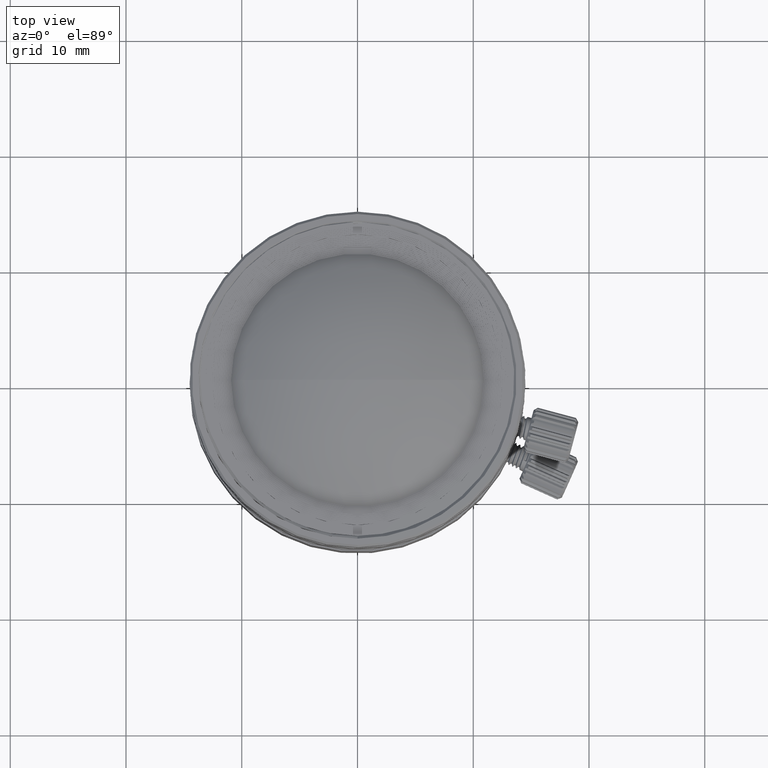
[diagram: clean part render]
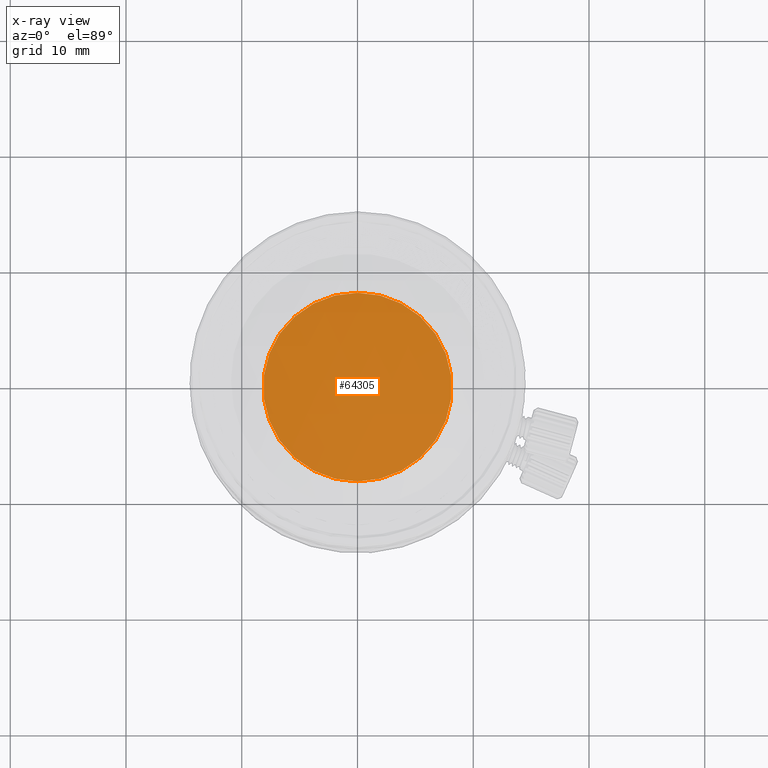
[diagram: x-ray — body ghosted, one internal face saturated and labeled with its STEP entity id]
A machine part, top view, then the same camera in x-ray: the body is ghosted and one INTERNAL B-rep face — a face not visible from any outside direction — is saturated and labeled: STEP entity #64305.
In plain terms, the highlighted planar face has unit normal (0, 0, -1).
Its self-contained STEP definition (entity closure, byte-faithful):
#332 = DIRECTION ( 'NONE',  ( -1.171455364577400068E-15, 0.000000000000000000, 1.000000000000000000 ) ) ;
#2481 = CARTESIAN_POINT ( 'NONE',  ( -9.980871413051040398E-16, 8.149999999999998579, 5.002248615326719903E-10 ) ) ;
#6861 = ORIENTED_EDGE ( 'NONE', *, *, #24103, .T. ) ;
#7371 = CARTESIAN_POINT ( 'NONE',  ( -1.118430752025689987E-29, -8.149999999999998579, 5.002248615326719903E-10 ) ) ;
#10008 = DIRECTION ( 'NONE',  ( 1.171455364582519973E-15, 0.000000000000000000, -1.000000000000000000 ) ) ;
#13025 = CIRCLE ( 'NONE', #43185, 8.149999999999998579 ) ;
#14413 = DIRECTION ( 'NONE',  ( 0.000000000000000000, -1.000000000000000000, 0.000000000000000000 ) ) ;
#17979 = VERTEX_POINT ( 'NONE', #7371 ) ;
#20959 = DIRECTION ( 'NONE',  ( -1.000000000000000000, 0.000000000000000000, -1.171455364577397110E-15 ) ) ;
#22704 = AXIS2_PLACEMENT_3D ( 'NONE', #34996, #10008, #14413 ) ;
#22889 = CIRCLE ( 'NONE', #56257, 8.149999999999998579 ) ;
#24103 = EDGE_CURVE ( 'NONE', #17979, #39452, #22889, .T. ) ;
#24137 = DIRECTION ( 'NONE',  ( -1.171455364577400068E-15, 0.000000000000000000, 1.000000000000000000 ) ) ;
#34262 = DIRECTION ( 'NONE',  ( -1.000000000000000000, 0.000000000000000000, -1.171455364577397110E-15 ) ) ;
#34589 = CARTESIAN_POINT ( 'NONE',  ( 0.000000000000000000, 0.000000000000000000, 5.002248615326719903E-10 ) ) ;
#34996 = CARTESIAN_POINT ( 'NONE',  ( 5.303396653807079140E-14, -10.80000728035239987, 5.002248615326719903E-10 ) ) ;
#39452 = VERTEX_POINT ( 'NONE', #2481 ) ;
#43185 = AXIS2_PLACEMENT_3D ( 'NONE', #46599, #332, #20959 ) ;
#45787 = FACE_OUTER_BOUND ( 'NONE', #47592, .T. ) ;
#46406 = ORIENTED_EDGE ( 'NONE', *, *, #46649, .T. ) ;
#46599 = CARTESIAN_POINT ( 'NONE',  ( 0.000000000000000000, 0.000000000000000000, 5.002248615326719903E-10 ) ) ;
#46649 = EDGE_CURVE ( 'NONE', #39452, #17979, #13025, .T. ) ;
#47592 = EDGE_LOOP ( 'NONE', ( #6861, #46406 ) ) ;
#56257 = AXIS2_PLACEMENT_3D ( 'NONE', #34589, #24137, #34262 ) ;
#64305 = ADVANCED_FACE ( 'NONE', ( #45787 ), #66653, .F. ) ;
#66653 = PLANE ( 'NONE',  #22704 ) ;